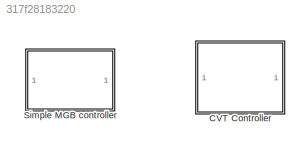
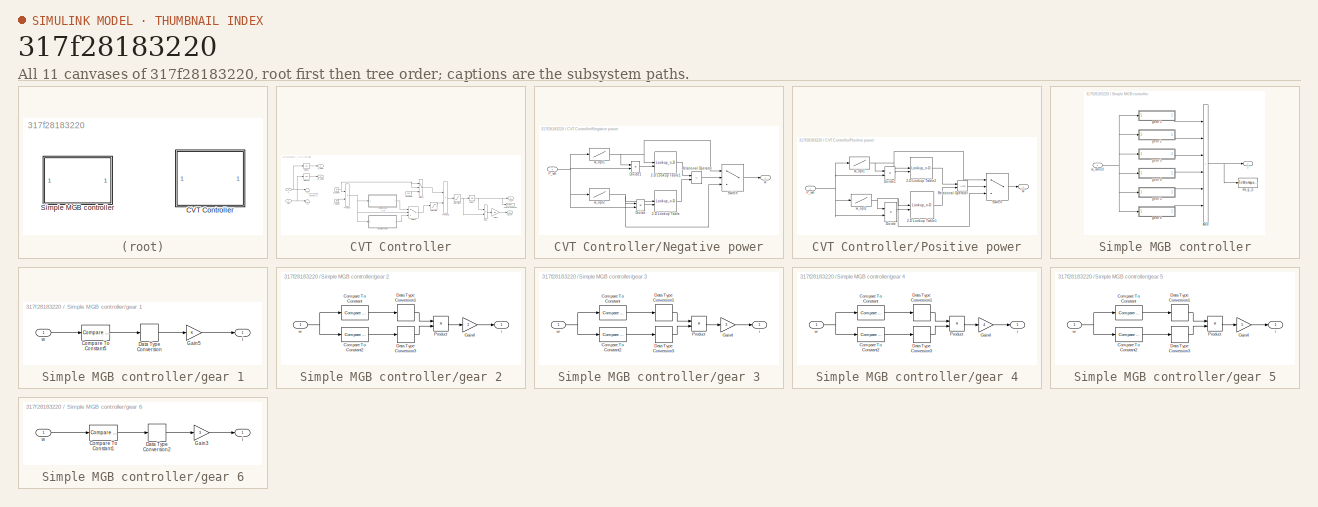
[diagram: thumbnail index - all 11 canvases of the model, root first then tree order]
MODEL slx_317f28183220
KIND library
CONFIG AbsTol = auto
CONFIG EnableMultiTasking = off
CONFIG FixedStep = auto
CONFIG MaxStep = auto
CONFIG MinStep = auto
CONFIG RelTol = 1e-3
CONFIG SampleTimeConstraint = Unconstrained
CONFIG SolverName = VariableStepAuto
CONFIG StartTime = 0.0
CONFIG StopTime = 10.0
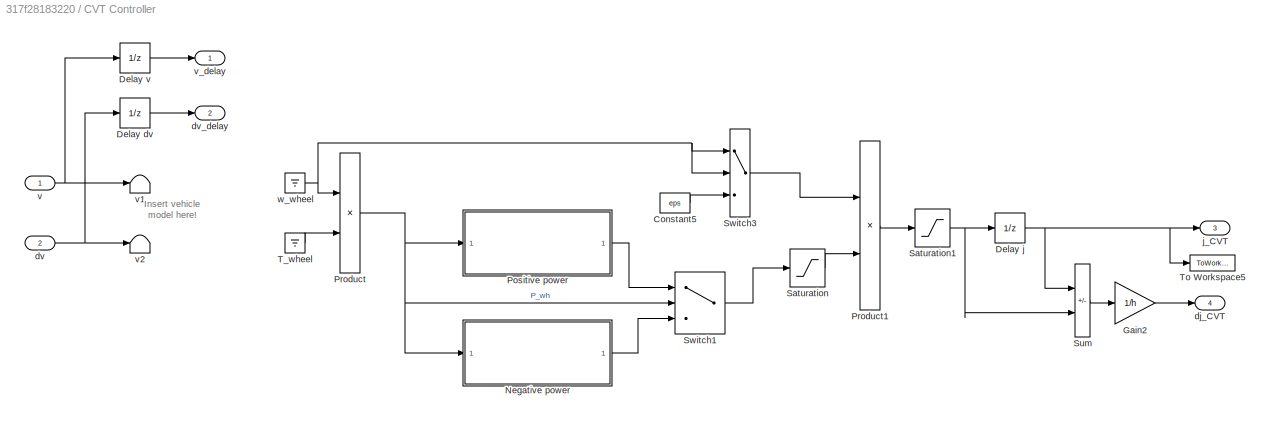
BLOCK [SubSystem] CVT Controller
  Tag = cvt controller
BLOCK [Constant] CVT Controller/Constant5
  Value = eps
BLOCK [UnitDelay] CVT Controller/Delay dv
  SampleTime = h
BLOCK [UnitDelay] CVT Controller/Delay j
  InitialCondition = j_CVT_min
  SampleTime = h
BLOCK [UnitDelay] CVT Controller/Delay v
  SampleTime = h
BLOCK [Gain] CVT Controller/Gain2
  Gain = 1/h
  OutDataTypeStr = Inherit: Same as input
  ParamDataTypeStr = Inherit: Same as input
  SaturateOnIntegerOverflow = on
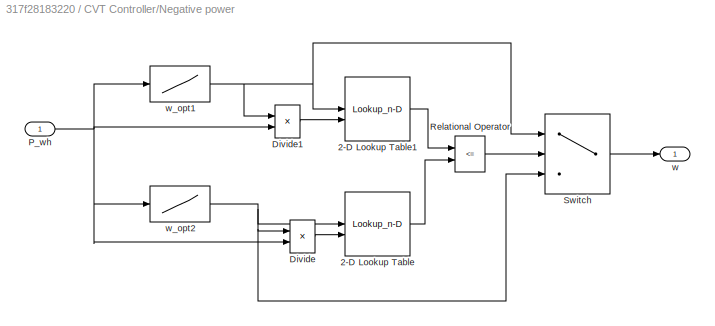
BLOCK [SubSystem] CVT Controller/Negative power
BLOCK [Lookup_n-D] CVT Controller/Negative power/2-D Lookup Table
  BreakpointsForDimension1 = T_EM_neg
  BreakpointsForDimension2 = w_EM_row
  InputPortMap = u0,u1
  InternalRulePriority = Speed
  RndMeth = Simplest
  Table = eta_EM_neg
BLOCK [Lookup_n-D] CVT Controller/Negative power/2-D Lookup Table1
  BreakpointsForDimension1 = T_EM_neg
  BreakpointsForDimension2 = w_EM_row
  InputPortMap = u0,u1
  InternalRulePriority = Speed
  RndMeth = Simplest
  Table = eta_EM_neg
BLOCK [Product] CVT Controller/Negative power/Divide
  Inputs = /*
BLOCK [Product] CVT Controller/Negative power/Divide1
  Inputs = /*
BLOCK [Inport] CVT Controller/Negative power/P_wh
BLOCK [RelationalOperator] CVT Controller/Negative power/Relational Operator
  InputSameDT = off
  Operator = <=
  OutDataTypeStr = boolean
  RndMeth = Simplest
BLOCK [Switch] CVT Controller/Negative power/Switch
  Criteria = u2 > Threshold
  InputSameDT = off
  SaturateOnIntegerOverflow = off
BLOCK [Outport] CVT Controller/Negative power/w
BLOCK [Lookup] CVT Controller/Negative power/w_opt1
  InputValues = P_opt_neg1
  Table = w1_n
BLOCK [Lookup] CVT Controller/Negative power/w_opt2
  InputValues = P_opt_neg2
  Table = w2S_n
BLOCK [SubSystem] CVT Controller/Positive power
BLOCK [Lookup_n-D] CVT Controller/Positive power/2-D Lookup Table1
  BreakpointsForDimension1 = T_EM_pos
  BreakpointsForDimension2 = w_EM_row
  InputPortMap = u0,u1
  InternalRulePriority = Speed
  RndMeth = Simplest
  Table = eta_EM_pos
BLOCK [Lookup_n-D] CVT Controller/Positive power/2-D Lookup Table2
  BreakpointsForDimension1 = T_EM_pos
  BreakpointsForDimension2 = w_EM_row
  InputPortMap = u0,u1
  InternalRulePriority = Speed
  RndMeth = Simplest
  Table = eta_EM_pos
BLOCK [Product] CVT Controller/Positive power/Divide
  Inputs = /*
BLOCK [Product] CVT Controller/Positive power/Divide1
  Inputs = /*
BLOCK [Inport] CVT Controller/Positive power/P_wh
BLOCK [RelationalOperator] CVT Controller/Positive power/Relational Operator
  InputSameDT = off
  OutDataTypeStr = boolean
  RndMeth = Simplest
BLOCK [Switch] CVT Controller/Positive power/Switch
  Criteria = u2 > Threshold
  InputSameDT = off
  SaturateOnIntegerOverflow = off
BLOCK [Outport] CVT Controller/Positive power/w
BLOCK [Lookup] CVT Controller/Positive power/w_opt1
  InputValues = P_opt_pos1
  Table = w1
BLOCK [Lookup] CVT Controller/Positive power/w_opt2
  InputValues = P_opt_pos2
  Table = w2S_p
BLOCK [Product] CVT Controller/Product
  InputSameDT = on
  OutDataTypeStr = Inherit: Same as first input
  RndMeth = Zero
  SaturateOnIntegerOverflow = on
BLOCK [Product] CVT Controller/Product1
  InputSameDT = on
  Inputs = /*
  OutDataTypeStr = Inherit: Same as first input
  RndMeth = Zero
  SaturateOnIntegerOverflow = on
BLOCK [Saturate] CVT Controller/Saturation
  LowerLimit = w_CVT_idle
  UpperLimit = w_CVT_upper
BLOCK [Saturate] CVT Controller/Saturation1
  LowerLimit = j_CVT_min
  UpperLimit = j_CVT_max
BLOCK [Sum] CVT Controller/Sum
  IconShape = rectangular
  InputSameDT = on
  Inputs = -+
  OutDataTypeStr = Inherit: Same as first input
  SaturateOnIntegerOverflow = on
BLOCK [Switch] CVT Controller/Switch1
  Criteria = u2 > Threshold
  InputSameDT = off
  SaturateOnIntegerOverflow = off
BLOCK [Switch] CVT Controller/Switch3
  Threshold = w_wheel_min
BLOCK [Ground] CVT Controller/T_wheel
BLOCK [ToWorkspace] CVT Controller/To Workspace5
  MaxDataPoints = inf
  SampleTime = -1
  VariableName = j_CVT
BLOCK [Outport] CVT Controller/dj_CVT
  InitialOutput = 0
  Port = 4
BLOCK [Inport] CVT Controller/dv
  Port = 2
BLOCK [Outport] CVT Controller/dv_delay
  InitialOutput = 0
  Port = 2
BLOCK [Outport] CVT Controller/j_CVT
  InitialOutput = 0
  Port = 3
BLOCK [Inport] CVT Controller/v
BLOCK [Terminator] CVT Controller/v1
BLOCK [Terminator] CVT Controller/v2
BLOCK [Outport] CVT Controller/v_delay
  InitialOutput = 0
BLOCK [Ground] CVT Controller/w_wheel
BLOCK [SubSystem] Simple MGB controller
  NameLocation = top
BLOCK [Sum] Simple MGB controller/Add
  IconShape = rectangular
  Inputs = ++++++
BLOCK [SubSystem] Simple MGB controller/gear 1
BLOCK [Reference] Simple MGB controller/gear 1/Compare To Constant5  REF=simulink/Logic and Bit
Operations/Compare
To Constant
  SourceBlock = simulink/Logic and Bit\nOperations/Compare\nTo Constant
  SourceType = Compare To Constant
BLOCK [DataTypeConversion] Simple MGB controller/gear 1/Data Type Conversion
  OutDataTypeStr = double
  RndMeth = Floor
  SaturateOnIntegerOverflow = off
BLOCK [Gain] Simple MGB controller/gear 1/Gain5
BLOCK [Outport] Simple MGB controller/gear 1/i
BLOCK [Inport] Simple MGB controller/gear 1/w
BLOCK [SubSystem] Simple MGB controller/gear 2
BLOCK [Reference] Simple MGB controller/gear 2/Compare To Constant  REF=simulink/Logic and Bit
Operations/Compare
To Constant
  SourceBlock = simulink/Logic and Bit\nOperations/Compare\nTo Constant
  SourceType = Compare To Constant
BLOCK [Reference] Simple MGB controller/gear 2/Compare To Constant2  REF=simulink/Logic and Bit
Operations/Compare
To Constant
  SourceBlock = simulink/Logic and Bit\nOperations/Compare\nTo Constant
  SourceType = Compare To Constant
BLOCK [DataTypeConversion] Simple MGB controller/gear 2/Data Type Conversion1
  OutDataTypeStr = double
  RndMeth = Floor
  SaturateOnIntegerOverflow = off
BLOCK [DataTypeConversion] Simple MGB controller/gear 2/Data Type Conversion3
  OutDataTypeStr = double
  RndMeth = Floor
  SaturateOnIntegerOverflow = off
BLOCK [Gain] Simple MGB controller/gear 2/Gain4
  Gain = 2
BLOCK [Product] Simple MGB controller/gear 2/Product
BLOCK [Outport] Simple MGB controller/gear 2/i
BLOCK [Inport] Simple MGB controller/gear 2/w
BLOCK [SubSystem] Simple MGB controller/gear 3
BLOCK [Reference] Simple MGB controller/gear 3/Compare To Constant  REF=simulink/Logic and Bit
Operations/Compare
To Constant
  SourceBlock = simulink/Logic and Bit\nOperations/Compare\nTo Constant
  SourceType = Compare To Constant
BLOCK [Reference] Simple MGB controller/gear 3/Compare To Constant2  REF=simulink/Logic and Bit
Operations/Compare
To Constant
  SourceBlock = simulink/Logic and Bit\nOperations/Compare\nTo Constant
  SourceType = Compare To Constant
BLOCK [DataTypeConversion] Simple MGB controller/gear 3/Data Type Conversion1
  OutDataTypeStr = double
  RndMeth = Floor
  SaturateOnIntegerOverflow = off
BLOCK [DataTypeConversion] Simple MGB controller/gear 3/Data Type Conversion3
  OutDataTypeStr = double
  RndMeth = Floor
  SaturateOnIntegerOverflow = off
BLOCK [Gain] Simple MGB controller/gear 3/Gain4
  Gain = 3
BLOCK [Product] Simple MGB controller/gear 3/Product
BLOCK [Outport] Simple MGB controller/gear 3/i
BLOCK [Inport] Simple MGB controller/gear 3/w
BLOCK [SubSystem] Simple MGB controller/gear 4
BLOCK [Reference] Simple MGB controller/gear 4/Compare To Constant  REF=simulink/Logic and Bit
Operations/Compare
To Constant
  SourceBlock = simulink/Logic and Bit\nOperations/Compare\nTo Constant
  SourceType = Compare To Constant
BLOCK [Reference] Simple MGB controller/gear 4/Compare To Constant2  REF=simulink/Logic and Bit
Operations/Compare
To Constant
  SourceBlock = simulink/Logic and Bit\nOperations/Compare\nTo Constant
  SourceType = Compare To Constant
BLOCK [DataTypeConversion] Simple MGB controller/gear 4/Data Type Conversion1
  OutDataTypeStr = double
  RndMeth = Floor
  SaturateOnIntegerOverflow = off
BLOCK [DataTypeConversion] Simple MGB controller/gear 4/Data Type Conversion3
  OutDataTypeStr = double
  RndMeth = Floor
  SaturateOnIntegerOverflow = off
BLOCK [Gain] Simple MGB controller/gear 4/Gain4
  Gain = 4
BLOCK [Product] Simple MGB controller/gear 4/Product
BLOCK [Outport] Simple MGB controller/gear 4/i
BLOCK [Inport] Simple MGB controller/gear 4/w
BLOCK [SubSystem] Simple MGB controller/gear 5
BLOCK [Reference] Simple MGB controller/gear 5/Compare To Constant  REF=simulink/Logic and Bit
Operations/Compare
To Constant
  SourceBlock = simulink/Logic and Bit\nOperations/Compare\nTo Constant
  SourceType = Compare To Constant
BLOCK [Reference] Simple MGB controller/gear 5/Compare To Constant2  REF=simulink/Logic and Bit
Operations/Compare
To Constant
  SourceBlock = simulink/Logic and Bit\nOperations/Compare\nTo Constant
  SourceType = Compare To Constant
BLOCK [DataTypeConversion] Simple MGB controller/gear 5/Data Type Conversion1
  OutDataTypeStr = double
  RndMeth = Floor
  SaturateOnIntegerOverflow = off
BLOCK [DataTypeConversion] Simple MGB controller/gear 5/Data Type Conversion3
  OutDataTypeStr = double
  RndMeth = Floor
  SaturateOnIntegerOverflow = off
BLOCK [Gain] Simple MGB controller/gear 5/Gain4
  Gain = 5
BLOCK [Product] Simple MGB controller/gear 5/Product
BLOCK [Outport] Simple MGB controller/gear 5/i
BLOCK [Inport] Simple MGB controller/gear 5/w
BLOCK [SubSystem] Simple MGB controller/gear 6
BLOCK [Reference] Simple MGB controller/gear 6/Compare To Constant1  REF=simulink/Logic and Bit
Operations/Compare
To Constant
  SourceBlock = simulink/Logic and Bit\nOperations/Compare\nTo Constant
  SourceType = Compare To Constant
BLOCK [DataTypeConversion] Simple MGB controller/gear 6/Data Type Conversion2
  OutDataTypeStr = double
  RndMeth = Floor
  SaturateOnIntegerOverflow = off
BLOCK [Gain] Simple MGB controller/gear 6/Gain3
  Gain = 3
BLOCK [Outport] Simple MGB controller/gear 6/i
BLOCK [Inport] Simple MGB controller/gear 6/w
BLOCK [Outport] Simple MGB controller/i
BLOCK [Inport] Simple MGB controller/w_wheel
BLOCK [ToWorkspace] Simple MGB controller/ws_g_p
  FixptAsFi = on
  MaxDataPoints = inf
  SampleTime = -1
  VariableName = g_p1
ANNOTATION CVT Controller: Insert vehicle model here!
LINE CVT Controller/Constant5:1 -> CVT Controller/Switch3:3
LINE CVT Controller/Delay dv:1 -> CVT Controller/dv_delay:1
NET CVT Controller/Delay j:1 -> CVT Controller/Sum:1, CVT Controller/To Workspace5:1, CVT Controller/j_CVT:1
LINE CVT Controller/Delay v:1 -> CVT Controller/v_delay:1
LINE CVT Controller/Gain2:1 -> CVT Controller/dj_CVT:1
LINE CVT Controller/Negative power/2-D Lookup Table1:1 -> CVT Controller/Negative power/Relational Operator:1
LINE CVT Controller/Negative power/2-D Lookup Table:1 -> CVT Controller/Negative power/Relational Operator:2
LINE CVT Controller/Negative power/Divide1:1 -> CVT Controller/Negative power/2-D Lookup Table1:2
LINE CVT Controller/Negative power/Divide:1 -> CVT Controller/Negative power/2-D Lookup Table:2
NET CVT Controller/Negative power/P_wh:1 -> CVT Controller/Negative power/Divide1:2, CVT Controller/Negative power/Divide:2, CVT Controller/Negative power/w_opt1:1, CVT Controller/Negative power/w_opt2:1
LINE CVT Controller/Negative power/Relational Operator:1 -> CVT Controller/Negative power/Switch:2
LINE CVT Controller/Negative power/Switch:1 -> CVT Controller/Negative power/w:1
NET CVT Controller/Negative power/w_opt1:1 -> CVT Controller/Negative power/2-D Lookup Table1:1, CVT Controller/Negative power/Divide1:1, CVT Controller/Negative power/Switch:1
NET CVT Controller/Negative power/w_opt2:1 -> CVT Controller/Negative power/2-D Lookup Table:1, CVT Controller/Negative power/Divide:1, CVT Controller/Negative power/Switch:3
LINE CVT Controller/Negative power:1 -> CVT Controller/Switch1:3
LINE CVT Controller/Positive power/2-D Lookup Table1:1 -> CVT Controller/Positive power/Relational Operator:2
LINE CVT Controller/Positive power/2-D Lookup Table2:1 -> CVT Controller/Positive power/Relational Operator:1
LINE CVT Controller/Positive power/Divide1:1 -> CVT Controller/Positive power/2-D Lookup Table2:2
LINE CVT Controller/Positive power/Divide:1 -> CVT Controller/Positive power/2-D Lookup Table1:2
NET CVT Controller/Positive power/P_wh:1 -> CVT Controller/Positive power/Divide1:2, CVT Controller/Positive power/Divide:2, CVT Controller/Positive power/w_opt1:1, CVT Controller/Positive power/w_opt2:1
LINE CVT Controller/Positive power/Relational Operator:1 -> CVT Controller/Positive power/Switch:2
LINE CVT Controller/Positive power/Switch:1 -> CVT Controller/Positive power/w:1
NET CVT Controller/Positive power/w_opt1:1 -> CVT Controller/Positive power/2-D Lookup Table2:1, CVT Controller/Positive power/Divide1:1, CVT Controller/Positive power/Switch:1
NET CVT Controller/Positive power/w_opt2:1 -> CVT Controller/Positive power/2-D Lookup Table1:1, CVT Controller/Positive power/Divide:1, CVT Controller/Positive power/Switch:3
LINE CVT Controller/Positive power:1 -> CVT Controller/Switch1:1
LINE CVT Controller/Product1:1 -> CVT Controller/Saturation1:1
NET CVT Controller/Product:1 -> CVT Controller/Negative power:1, CVT Controller/Positive power:1, CVT Controller/Switch1:2
NET CVT Controller/Saturation1:1 -> CVT Controller/Delay j:1, CVT Controller/Sum:2
LINE CVT Controller/Saturation:1 -> CVT Controller/Product1:2
LINE CVT Controller/Sum:1 -> CVT Controller/Gain2:1
LINE CVT Controller/Switch1:1 -> CVT Controller/Saturation:1
LINE CVT Controller/Switch3:1 -> CVT Controller/Product1:1
LINE CVT Controller/T_wheel:1 -> CVT Controller/Product:2
NET CVT Controller/dv:1 -> CVT Controller/Delay dv:1, CVT Controller/v2:1
NET CVT Controller/v:1 -> CVT Controller/Delay v:1, CVT Controller/v1:1
NET CVT Controller/w_wheel:1 -> CVT Controller/Product:1, CVT Controller/Switch3:1, CVT Controller/Switch3:2
NET Simple MGB controller/Add:1 -> Simple MGB controller/i:1, Simple MGB controller/ws_g_p:1
LINE Simple MGB controller/gear 1/Compare To Constant5:1 -> Simple MGB controller/gear 1/Data Type Conversion:1
LINE Simple MGB controller/gear 1/Data Type Conversion:1 -> Simple MGB controller/gear 1/Gain5:1
LINE Simple MGB controller/gear 1/Gain5:1 -> Simple MGB controller/gear 1/i:1
LINE Simple MGB controller/gear 1/w:1 -> Simple MGB controller/gear 1/Compare To Constant5:1
LINE Simple MGB controller/gear 1:1 -> Simple MGB controller/Add:1
LINE Simple MGB controller/gear 2/Compare To Constant2:1 -> Simple MGB controller/gear 2/Data Type Conversion3:1
LINE Simple MGB controller/gear 2/Compare To Constant:1 -> Simple MGB controller/gear 2/Data Type Conversion1:1
LINE Simple MGB controller/gear 2/Data Type Conversion1:1 -> Simple MGB controller/gear 2/Product:1
LINE Simple MGB controller/gear 2/Data Type Conversion3:1 -> Simple MGB controller/gear 2/Product:2
LINE Simple MGB controller/gear 2/Gain4:1 -> Simple MGB controller/gear 2/i:1
LINE Simple MGB controller/gear 2/Product:1 -> Simple MGB controller/gear 2/Gain4:1
NET Simple MGB controller/gear 2/w:1 -> Simple MGB controller/gear 2/Compare To Constant2:1, Simple MGB controller/gear 2/Compare To Constant:1
LINE Simple MGB controller/gear 2:1 -> Simple MGB controller/Add:2
LINE Simple MGB controller/gear 3/Compare To Constant2:1 -> Simple MGB controller/gear 3/Data Type Conversion3:1
LINE Simple MGB controller/gear 3/Compare To Constant:1 -> Simple MGB controller/gear 3/Data Type Conversion1:1
LINE Simple MGB controller/gear 3/Data Type Conversion1:1 -> Simple MGB controller/gear 3/Product:1
LINE Simple MGB controller/gear 3/Data Type Conversion3:1 -> Simple MGB controller/gear 3/Product:2
LINE Simple MGB controller/gear 3/Gain4:1 -> Simple MGB controller/gear 3/i:1
LINE Simple MGB controller/gear 3/Product:1 -> Simple MGB controller/gear 3/Gain4:1
NET Simple MGB controller/gear 3/w:1 -> Simple MGB controller/gear 3/Compare To Constant2:1, Simple MGB controller/gear 3/Compare To Constant:1
LINE Simple MGB controller/gear 3:1 -> Simple MGB controller/Add:3
LINE Simple MGB controller/gear 4/Compare To Constant2:1 -> Simple MGB controller/gear 4/Data Type Conversion3:1
LINE Simple MGB controller/gear 4/Compare To Constant:1 -> Simple MGB controller/gear 4/Data Type Conversion1:1
LINE Simple MGB controller/gear 4/Data Type Conversion1:1 -> Simple MGB controller/gear 4/Product:1
LINE Simple MGB controller/gear 4/Data Type Conversion3:1 -> Simple MGB controller/gear 4/Product:2
LINE Simple MGB controller/gear 4/Gain4:1 -> Simple MGB controller/gear 4/i:1
LINE Simple MGB controller/gear 4/Product:1 -> Simple MGB controller/gear 4/Gain4:1
NET Simple MGB controller/gear 4/w:1 -> Simple MGB controller/gear 4/Compare To Constant2:1, Simple MGB controller/gear 4/Compare To Constant:1
LINE Simple MGB controller/gear 4:1 -> Simple MGB controller/Add:4
LINE Simple MGB controller/gear 5/Compare To Constant2:1 -> Simple MGB controller/gear 5/Data Type Conversion3:1
LINE Simple MGB controller/gear 5/Compare To Constant:1 -> Simple MGB controller/gear 5/Data Type Conversion1:1
LINE Simple MGB controller/gear 5/Data Type Conversion1:1 -> Simple MGB controller/gear 5/Product:1
LINE Simple MGB controller/gear 5/Data Type Conversion3:1 -> Simple MGB controller/gear 5/Product:2
LINE Simple MGB controller/gear 5/Gain4:1 -> Simple MGB controller/gear 5/i:1
LINE Simple MGB controller/gear 5/Product:1 -> Simple MGB controller/gear 5/Gain4:1
NET Simple MGB controller/gear 5/w:1 -> Simple MGB controller/gear 5/Compare To Constant2:1, Simple MGB controller/gear 5/Compare To Constant:1
LINE Simple MGB controller/gear 5:1 -> Simple MGB controller/Add:5
LINE Simple MGB controller/gear 6/Compare To Constant1:1 -> Simple MGB controller/gear 6/Data Type Conversion2:1
LINE Simple MGB controller/gear 6/Data Type Conversion2:1 -> Simple MGB controller/gear 6/Gain3:1
LINE Simple MGB controller/gear 6/Gain3:1 -> Simple MGB controller/gear 6/i:1
LINE Simple MGB controller/gear 6/w:1 -> Simple MGB controller/gear 6/Compare To Constant1:1
LINE Simple MGB controller/gear 6:1 -> Simple MGB controller/Add:6
NET Simple MGB controller/w_wheel:1 -> Simple MGB controller/gear 1:1, Simple MGB controller/gear 2:1, Simple MGB controller/gear 3:1, Simple MGB controller/gear 4:1, Simple MGB controller/gear 5:1, Simple MGB controller/gear 6:1
note: NET lines group one-source signal fan-out (src -> all destinations, sorted); 1:1 wires keep LINE
